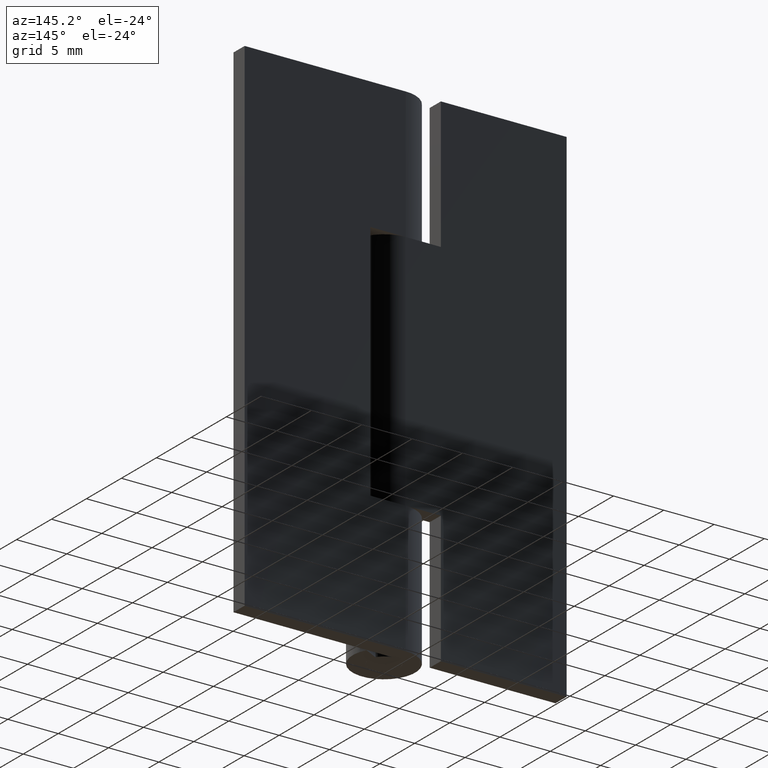
[diagram: clean part render]
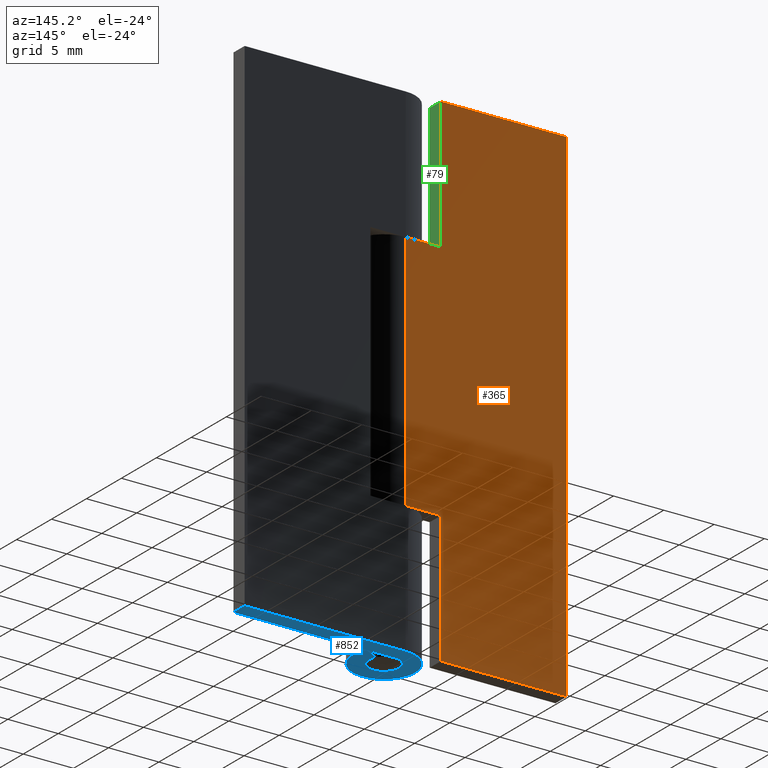
[diagram: same view with three faces highlighted in distinct colors, each labeled with its STEP entity id]
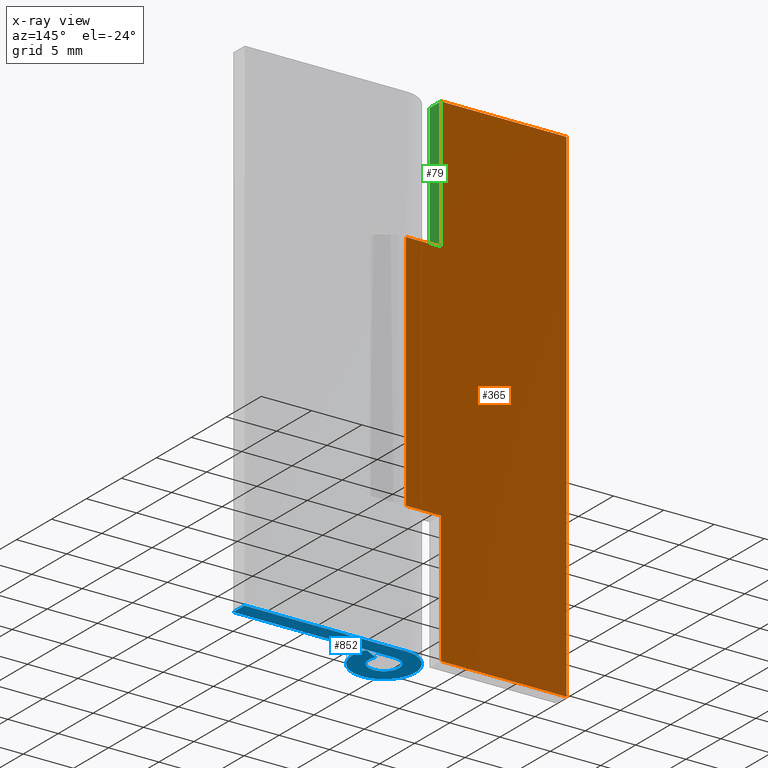
[diagram: x-ray of the same camera — body ghosted, the three highlighted faces saturated]
A machine part, auxiliary view with three faces highlighted in distinct colors.
The next image is the same camera in x-ray (body ghosted, the three faces saturated) — at least one of them is partly hidden behind the body in this view.
Their STEP definitions:

[orange] entity #365 — the highlighted face is a freeform B-spline surface patch.
#58=CARTESIAN_POINT('',(-3.500000000000100,3.099998000000050,37.0));
#59=VERTEX_POINT('',#58);
#65=CARTESIAN_POINT('',(-3.500000000000100,3.099998000000000,50.0));
#66=VERTEX_POINT('',#65);
#67=CARTESIAN_POINT('',(-3.500000000000100,3.099998000000050,37.0));
#68=CARTESIAN_POINT('',(-3.500000000000100,3.099998000000000,50.0));
#69=QUASI_UNIFORM_CURVE('',1,(#67,#68),.UNSPECIFIED.,.F.,.U.);
#70=EDGE_CURVE('',#59,#66,#69,.T.);
#141=CARTESIAN_POINT('',(-0.003521362805224,3.099998000000000,37.0));
#142=VERTEX_POINT('',#141);
#148=CARTESIAN_POINT('',(-0.003521362805224,3.099998000000000,37.0));
#149=CARTESIAN_POINT('',(-3.500000000000100,3.099998000000050,37.0));
#150=QUASI_UNIFORM_CURVE('',1,(#148,#149),.UNSPECIFIED.,.F.,.U.);
#151=EDGE_CURVE('',#142,#59,#150,.T.);
#171=CARTESIAN_POINT('',(-3.500000000000100,3.099998000000050,0.0));
#172=VERTEX_POINT('',#171);
#178=CARTESIAN_POINT('',(-3.500000000000100,3.099998000000050,13.0));
#179=VERTEX_POINT('',#178);
#180=CARTESIAN_POINT('',(-3.500000000000100,3.099998000000050,0.0));
#181=CARTESIAN_POINT('',(-3.500000000000100,3.099998000000050,13.0));
#182=QUASI_UNIFORM_CURVE('',1,(#180,#181),.UNSPECIFIED.,.F.,.U.);
#183=EDGE_CURVE('',#172,#179,#182,.T.);
#206=CARTESIAN_POINT('',(-0.003521362805224,3.099998000000000,13.0));
#207=VERTEX_POINT('',#206);
#208=CARTESIAN_POINT('',(-3.500000000000100,3.099998000000050,13.0));
#209=CARTESIAN_POINT('',(-0.003521362805224,3.099998000000000,13.0));
#210=QUASI_UNIFORM_CURVE('',1,(#208,#209),.UNSPECIFIED.,.F.,.U.);
#211=EDGE_CURVE('',#179,#207,#210,.T.);
#283=CARTESIAN_POINT('',(-16.0,3.099998000000000,50.0));
#284=VERTEX_POINT('',#283);
#285=CARTESIAN_POINT('',(-3.500000000000100,3.099998000000000,50.0));
#286=CARTESIAN_POINT('',(-16.0,3.099998000000000,50.0));
#287=QUASI_UNIFORM_CURVE('',1,(#285,#286),.UNSPECIFIED.,.F.,.U.);
#288=EDGE_CURVE('',#66,#284,#287,.T.);
#311=CARTESIAN_POINT('',(-16.0,3.099998000000000,0.0));
#312=VERTEX_POINT('',#311);
#318=CARTESIAN_POINT('',(-3.500000000000100,3.099998000000050,0.0));
#319=CARTESIAN_POINT('',(-16.0,3.099998000000000,0.0));
#320=QUASI_UNIFORM_CURVE('',1,(#318,#319),.UNSPECIFIED.,.F.,.U.);
#321=EDGE_CURVE('',#172,#312,#320,.T.);
#332=CARTESIAN_POINT('',(-16.0,3.099998000000000,0.0));
#333=CARTESIAN_POINT('',(-16.0,3.099998000000000,50.0));
#334=QUASI_UNIFORM_CURVE('',1,(#332,#333),.UNSPECIFIED.,.F.,.U.);
#335=EDGE_CURVE('',#312,#284,#334,.T.);
#346=CARTESIAN_POINT('',(-16.799024076923601,3.099998000000000,-2.497499903090299));
#347=CARTESIAN_POINT('',(-16.799024076923601,3.099998000000000,52.497501244194808));
#348=CARTESIAN_POINT('',(0.795503143177368,3.099998000000000,-2.497499903090299));
#349=CARTESIAN_POINT('',(0.795503143177368,3.099998000000000,52.497501244194808));
#350=B_SPLINE_SURFACE_WITH_KNOTS('',1,1,((#346,#348),(#347,#349)),.UNSPECIFIED.,.F.,.F.,.U.,(2,2),(2,2),(0.0,54.995001147285109),(0.0,17.594527220100961),.UNSPECIFIED.);
#351=ORIENTED_EDGE('',*,*,#151,.F.);
#352=CARTESIAN_POINT('',(-0.003521362805224,3.099998000000000,13.0));
#353=CARTESIAN_POINT('',(-0.003521362805224,3.099998000000000,37.0));
#354=QUASI_UNIFORM_CURVE('',1,(#352,#353),.UNSPECIFIED.,.F.,.U.);
#355=EDGE_CURVE('',#207,#142,#354,.T.);
#356=ORIENTED_EDGE('',*,*,#355,.F.);
#357=ORIENTED_EDGE('',*,*,#211,.F.);
#358=ORIENTED_EDGE('',*,*,#183,.F.);
#359=ORIENTED_EDGE('',*,*,#321,.T.);
#360=ORIENTED_EDGE('',*,*,#335,.T.);
#361=ORIENTED_EDGE('',*,*,#288,.F.);
#362=ORIENTED_EDGE('',*,*,#70,.F.);
#363=EDGE_LOOP('',(#351,#356,#357,#358,#359,#360,#361,#362));
#364=FACE_OUTER_BOUND('',#363,.T.);
#365=ADVANCED_FACE('',(#364),#350,.T.);

[blue] entity #852 — the highlighted face is a freeform B-spline surface patch.
#775=CARTESIAN_POINT('',(-4.053816151624483,-3.408860472703513,0.0));
#776=CARTESIAN_POINT('',(16.954034589875540,-3.408860472703513,0.0));
#777=CARTESIAN_POINT('',(-4.053816151624483,3.409648596006917,0.0));
#778=CARTESIAN_POINT('',(16.954034589875540,3.409648596006917,0.0));
#779=B_SPLINE_SURFACE_WITH_KNOTS('',1,1,((#775,#777),(#776,#778)),.UNSPECIFIED.,.F.,.F.,.U.,(2,2),(2,2),(0.0,21.007850741500022),(0.0,6.818509068710430),.UNSPECIFIED.);
#780=CARTESIAN_POINT('',(2.739981751764050,1.450000000000000,0.0));
#781=VERTEX_POINT('',#780);
#782=CARTESIAN_POINT('',(0.003521362805220,3.099998000000000,0.0));
#783=VERTEX_POINT('',#782);
#784=CARTESIAN_POINT('',(2.739981751764050,1.450000000000002,0.0));
#785=CARTESIAN_POINT('',(3.842352259281344,-0.633086258124314,0.0));
#786=CARTESIAN_POINT('',(2.129955333572986,-2.252396562993291,0.0));
#787=CARTESIAN_POINT('',(0.417558407864627,-3.871706867862268,0.0));
#788=CARTESIAN_POINT('',(-1.600726611546711,-2.654745621540072,0.0));
#789=CARTESIAN_POINT('',(-3.619011630958046,-1.437784375217877,0.0));
#790=CARTESIAN_POINT('',(-2.986140433580759,0.832445380150624,0.0));
#791=CARTESIAN_POINT('',(-2.353269236203469,3.102675135519129,0.0));
#792=CARTESIAN_POINT('',(0.003521362805217,3.099997999999999,0.0));
#800=(BOUNDED_CURVE()B_SPLINE_CURVE(2,(#784,#785,#786,#787,#788,#789,#790,#791,#792),.UNSPECIFIED.,.F.,.U.)B_SPLINE_CURVE_WITH_KNOTS((3,2,2,2,3),(0.0,0.250000000000000,0.500000000000000,0.750000000000000,1.0),.UNSPECIFIED.)CURVE()GEOMETRIC_REPRESENTATION_ITEM()RATIONAL_B_SPLINE_CURVE((1.0,0.796064190964140,1.0,0.796064190964140,1.0,0.796064190964140,1.0,0.796064190964140,1.0))REPRESENTATION_ITEM(''));
#801=EDGE_CURVE('',#781,#783,#800,.T.);
#802=ORIENTED_EDGE('',*,*,#801,.T.);
#803=CARTESIAN_POINT('',(16.0,3.099998000000000,0.0));
#804=VERTEX_POINT('',#803);
#805=CARTESIAN_POINT('',(0.003521362805220,3.099998000000000,0.0));
#806=CARTESIAN_POINT('',(16.0,3.099998000000000,0.0));
#807=QUASI_UNIFORM_CURVE('',1,(#805,#806),.UNSPECIFIED.,.F.,.U.);
#808=EDGE_CURVE('',#783,#804,#807,.T.);
#809=ORIENTED_EDGE('',*,*,#808,.T.);
#810=CARTESIAN_POINT('',(16.0,1.500000000000000,0.0));
#811=VERTEX_POINT('',#810);
#812=CARTESIAN_POINT('',(16.0,3.099998000000000,0.0));
#813=CARTESIAN_POINT('',(16.0,1.500000000000000,0.0));
#814=QUASI_UNIFORM_CURVE('',1,(#812,#813),.UNSPECIFIED.,.F.,.U.);
#815=EDGE_CURVE('',#804,#811,#814,.T.);
#816=ORIENTED_EDGE('',*,*,#815,.T.);
#817=CARTESIAN_POINT('',(0.0,1.500000000000000,0.0));
#818=VERTEX_POINT('',#817);
#819=CARTESIAN_POINT('',(16.0,1.500000000000000,0.0));
#820=CARTESIAN_POINT('',(0.0,1.500000000000000,0.0));
#821=QUASI_UNIFORM_CURVE('',1,(#819,#820),.UNSPECIFIED.,.F.,.U.);
#822=EDGE_CURVE('',#811,#818,#821,.T.);
#823=ORIENTED_EDGE('',*,*,#822,.T.);
#824=CARTESIAN_POINT('',(1.325797621821316,0.701612903225806,0.0));
#825=VERTEX_POINT('',#824);
#826=CARTESIAN_POINT('',(1.325797621821315,0.701612903225806,0.0));
#827=CARTESIAN_POINT('',(1.859045520162959,-0.306035035134632,0.0));
#828=CARTESIAN_POINT('',(1.030933009042893,-1.089576583295441,0.0));
#829=CARTESIAN_POINT('',(0.202820497922826,-1.873118131456252,0.0));
#830=CARTESIAN_POINT('',(-0.773815431857395,-1.284994037892532,0.0));
#831=CARTESIAN_POINT('',(-1.750451361637613,-0.696869944328814,0.0));
#832=CARTESIAN_POINT('',(-1.445249296287461,0.401565027835592,0.0));
#833=CARTESIAN_POINT('',(-1.140047230937308,1.500000000000000,0.0));
#834=CARTESIAN_POINT('',(0.0,1.500000000000000,0.0));
#842=(BOUNDED_CURVE()B_SPLINE_CURVE(2,(#826,#827,#828,#829,#830,#831,#832,#833,#834),.UNSPECIFIED.,.F.,.U.)B_SPLINE_CURVE_WITH_KNOTS((3,2,2,2,3),(0.0,0.250000000000000,0.500000000000000,0.750000000000000,1.0),.UNSPECIFIED.)CURVE()GEOMETRIC_REPRESENTATION_ITEM()RATIONAL_B_SPLINE_CURVE((1.0,0.796150117301085,1.0,0.796150117301085,1.0,0.796150117301085,1.0,0.796150117301085,1.0))REPRESENTATION_ITEM(''));
#843=EDGE_CURVE('',#825,#818,#842,.T.);
#844=ORIENTED_EDGE('',*,*,#843,.F.);
#845=CARTESIAN_POINT('',(1.325797621821316,0.701612903225806,0.0));
#846=CARTESIAN_POINT('',(2.739981751764050,1.450000000000000,0.0));
#847=QUASI_UNIFORM_CURVE('',1,(#845,#846),.UNSPECIFIED.,.F.,.U.);
#848=EDGE_CURVE('',#825,#781,#847,.T.);
#849=ORIENTED_EDGE('',*,*,#848,.T.);
#850=EDGE_LOOP('',(#802,#809,#816,#823,#844,#849));
#851=FACE_OUTER_BOUND('',#850,.T.);
#852=ADVANCED_FACE('',(#851),#779,.F.);

[green] entity #79 — the highlighted face is a freeform B-spline surface patch.
#44=CARTESIAN_POINT('',(-3.500000000000100,1.420080103001047,36.350650025196522));
#45=CARTESIAN_POINT('',(-3.500000000000100,1.420080103001047,50.649350323490651));
#46=CARTESIAN_POINT('',(-3.500000000000100,3.179917939914239,36.350650025196522));
#47=CARTESIAN_POINT('',(-3.500000000000100,3.179917939914239,50.649350323490651));
#48=B_SPLINE_SURFACE_WITH_KNOTS('',1,1,((#44,#46),(#45,#47)),.UNSPECIFIED.,.F.,.F.,.U.,(2,2),(2,2),(0.0,14.298700298294129),(0.041708334948495,0.958291687403247),.UNSPECIFIED.);
#49=CARTESIAN_POINT('',(-3.500000000000100,1.499999999999946,50.0));
#50=VERTEX_POINT('',#49);
#51=CARTESIAN_POINT('',(-3.500000000000100,1.499999999999946,37.0));
#52=VERTEX_POINT('',#51);
#53=CARTESIAN_POINT('',(-3.500000000000100,1.499999999999946,50.0));
#54=CARTESIAN_POINT('',(-3.500000000000100,1.499999999999946,37.0));
#55=QUASI_UNIFORM_CURVE('',1,(#53,#54),.UNSPECIFIED.,.F.,.U.);
#56=EDGE_CURVE('',#50,#52,#55,.T.);
#57=ORIENTED_EDGE('',*,*,#56,.T.);
#58=CARTESIAN_POINT('',(-3.500000000000100,3.099998000000050,37.0));
#59=VERTEX_POINT('',#58);
#60=CARTESIAN_POINT('',(-3.500000000000100,1.499999999999946,37.0));
#61=CARTESIAN_POINT('',(-3.500000000000100,3.099998000000050,37.0));
#62=QUASI_UNIFORM_CURVE('',1,(#60,#61),.UNSPECIFIED.,.F.,.U.);
#63=EDGE_CURVE('',#52,#59,#62,.T.);
#64=ORIENTED_EDGE('',*,*,#63,.T.);
#65=CARTESIAN_POINT('',(-3.500000000000100,3.099998000000000,50.0));
#66=VERTEX_POINT('',#65);
#67=CARTESIAN_POINT('',(-3.500000000000100,3.099998000000050,37.0));
#68=CARTESIAN_POINT('',(-3.500000000000100,3.099998000000000,50.0));
#69=QUASI_UNIFORM_CURVE('',1,(#67,#68),.UNSPECIFIED.,.F.,.U.);
#70=EDGE_CURVE('',#59,#66,#69,.T.);
#71=ORIENTED_EDGE('',*,*,#70,.T.);
#72=CARTESIAN_POINT('',(-3.500000000000100,1.499999999999946,50.0));
#73=CARTESIAN_POINT('',(-3.500000000000100,3.099998000000000,50.0));
#74=QUASI_UNIFORM_CURVE('',1,(#72,#73),.UNSPECIFIED.,.F.,.U.);
#75=EDGE_CURVE('',#50,#66,#74,.T.);
#76=ORIENTED_EDGE('',*,*,#75,.F.);
#77=EDGE_LOOP('',(#57,#64,#71,#76));
#78=FACE_OUTER_BOUND('',#77,.T.);
#79=ADVANCED_FACE('',(#78),#48,.F.);